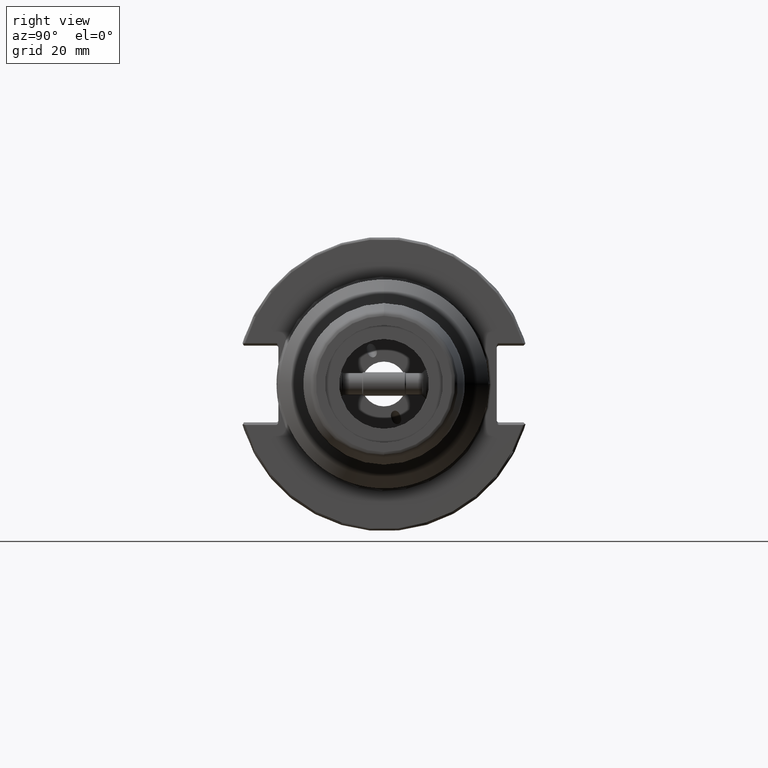
[diagram: clean part render]
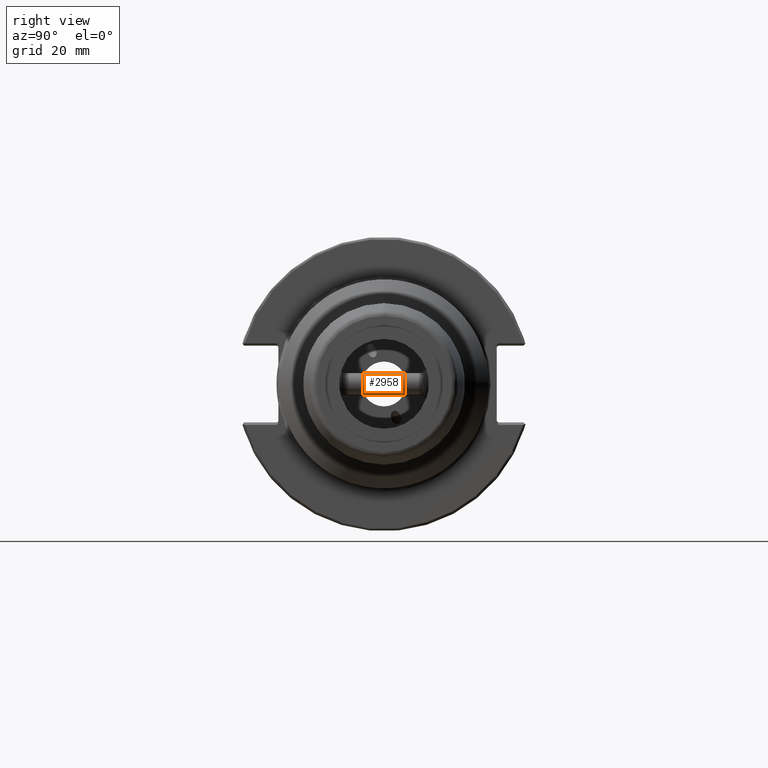
[diagram: same view with one face highlighted and labeled with its STEP entity id]
A machine part, right view. The second image highlights one B-rep face of the part: STEP entity #2958.
In plain terms, the highlighted cylindrical surface (edge-blend (fillet) strip) has radius 3.95 mm, axis along (-0, 1, 0).
Its self-contained STEP definition (entity closure, byte-faithful):
#20 = ORIENTED_EDGE ( 'NONE', *, *, #3445, .F. ) ;
#871 = AXIS2_PLACEMENT_3D ( 'NONE', #2068, #5977, #2626 ) ;
#1265 = LINE ( 'NONE', #5641, #5542 ) ;
#1333 = CYLINDRICAL_SURFACE ( 'NONE', #3994, 3.949999999999998000 ) ;
#1336 = CARTESIAN_POINT ( 'NONE',  ( 19.99999999999999600, 0.0000000000000000000, 3.949999999999997100 ) ) ;
#1407 = CARTESIAN_POINT ( 'NONE',  ( 0.0000000000000000000, 4.837354856632042100E-016, -3.949999999999998000 ) ) ;
#1657 = CARTESIAN_POINT ( 'NONE',  ( 34.00000000000000000, 0.0000000000000000000, 0.0000000000000000000 ) ) ;
#1825 = VERTEX_POINT ( 'NONE', #3114 ) ;
#2019 = CARTESIAN_POINT ( 'NONE',  ( 0.0000000000000000000, 0.0000000000000000000, 0.0000000000000000000 ) ) ;
#2068 = CARTESIAN_POINT ( 'NONE',  ( 19.99999999999999600, 0.0000000000000000000, 0.0000000000000000000 ) ) ;
#2205 = DIRECTION ( 'NONE',  ( 0.0000000000000000000, 0.0000000000000000000, 1.000000000000000000 ) ) ;
#2583 = DIRECTION ( 'NONE',  ( -1.000000000000000000, -0.0000000000000000000, -0.0000000000000000000 ) ) ;
#2626 = DIRECTION ( 'NONE',  ( 0.0000000000000000000, 0.0000000000000000000, 1.000000000000000000 ) ) ;
#2755 = EDGE_CURVE ( 'NONE', #6762, #1825, #4050, .T. ) ;
#2958 = ADVANCED_FACE ( 'NONE', ( #4485 ), #1333, .T. ) ;
#2970 = ORIENTED_EDGE ( 'NONE', *, *, #3991, .F. ) ;
#3114 = CARTESIAN_POINT ( 'NONE',  ( 34.00000000000000000, 4.837354856632043100E-016, -3.949999999999998800 ) ) ;
#3122 = DIRECTION ( 'NONE',  ( 0.0000000000000000000, 0.0000000000000000000, 1.000000000000000000 ) ) ;
#3177 = CIRCLE ( 'NONE', #871, 3.949999999999997100 ) ;
#3445 = EDGE_CURVE ( 'NONE', #3604, #7080, #3177, .T. ) ;
#3604 = VERTEX_POINT ( 'NONE', #1336 ) ;
#3991 = EDGE_CURVE ( 'NONE', #6762, #3604, #1265, .T. ) ;
#3994 = AXIS2_PLACEMENT_3D ( 'NONE', #2019, #2583, #3122 ) ;
#4050 = CIRCLE ( 'NONE', #4509, 3.949999999999998800 ) ;
#4485 = FACE_OUTER_BOUND ( 'NONE', #6657, .T. ) ;
#4509 = AXIS2_PLACEMENT_3D ( 'NONE', #1657, #5532, #2205 ) ;
#4556 = VECTOR ( 'NONE', #5295, 1000.000000000000000 ) ;
#4689 = ORIENTED_EDGE ( 'NONE', *, *, #2755, .T. ) ;
#4727 = LINE ( 'NONE', #1407, #4556 ) ;
#5003 = ORIENTED_EDGE ( 'NONE', *, *, #6340, .T. ) ;
#5086 = DIRECTION ( 'NONE',  ( -1.000000000000000000, -0.0000000000000000000, -0.0000000000000000000 ) ) ;
#5295 = DIRECTION ( 'NONE',  ( -1.000000000000000000, -0.0000000000000000000, -0.0000000000000000000 ) ) ;
#5532 = DIRECTION ( 'NONE',  ( -1.000000000000000000, -0.0000000000000000000, -0.0000000000000000000 ) ) ;
#5542 = VECTOR ( 'NONE', #5086, 1000.000000000000000 ) ;
#5641 = CARTESIAN_POINT ( 'NONE',  ( 0.0000000000000000000, 0.0000000000000000000, 3.949999999999998000 ) ) ;
#5977 = DIRECTION ( 'NONE',  ( -1.000000000000000000, -0.0000000000000000000, -0.0000000000000000000 ) ) ;
#6340 = EDGE_CURVE ( 'NONE', #1825, #7080, #4727, .T. ) ;
#6409 = CARTESIAN_POINT ( 'NONE',  ( 19.99999999999999600, 4.837354856632042100E-016, -3.949999999999997100 ) ) ;
#6451 = CARTESIAN_POINT ( 'NONE',  ( 34.00000000000000000, 0.0000000000000000000, 3.949999999999998800 ) ) ;
#6657 = EDGE_LOOP ( 'NONE', ( #4689, #5003, #20, #2970 ) ) ;
#6762 = VERTEX_POINT ( 'NONE', #6451 ) ;
#7080 = VERTEX_POINT ( 'NONE', #6409 ) ;